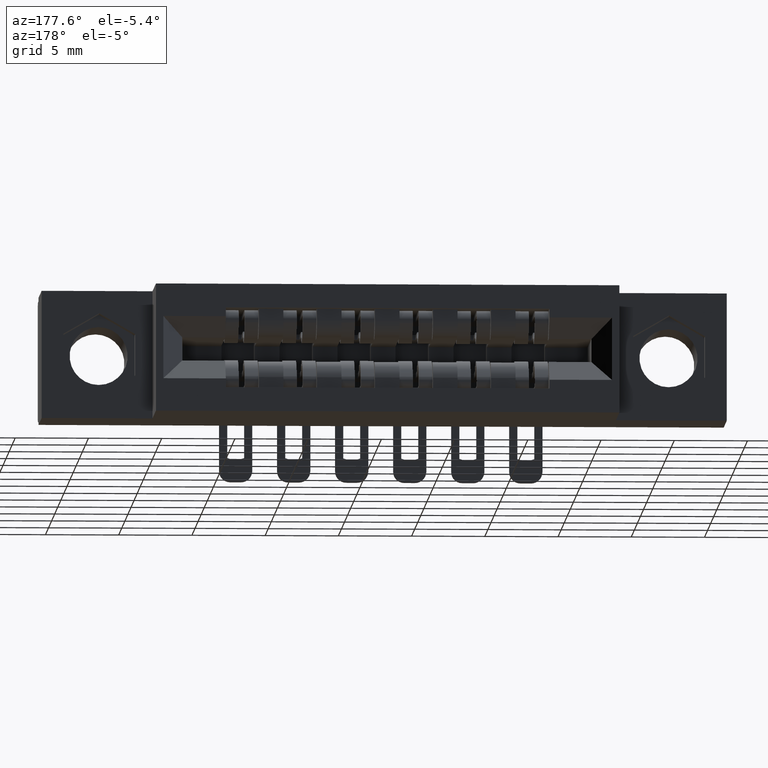
[diagram: clean part render]
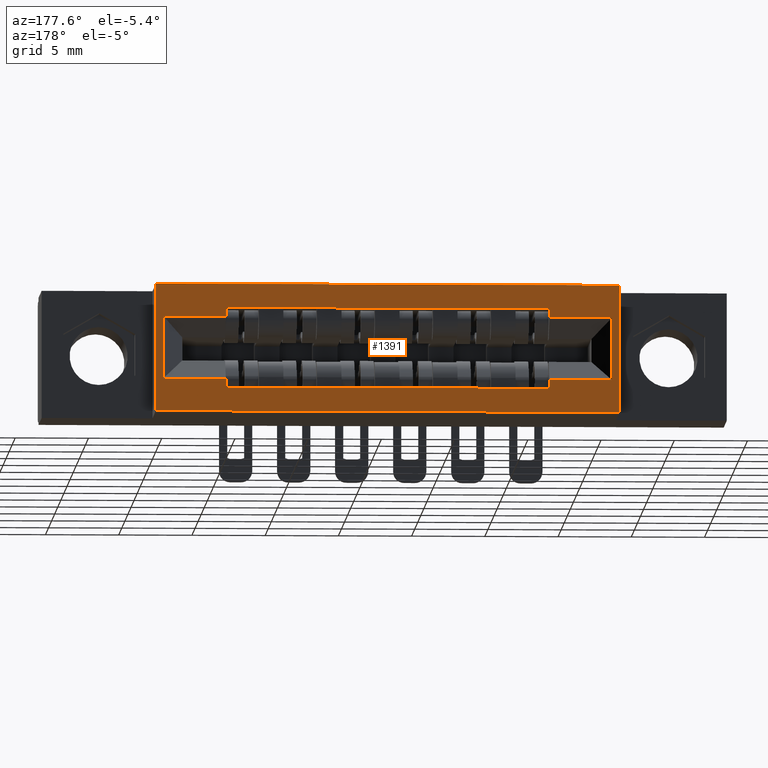
[diagram: same view with one face highlighted and labeled with its STEP entity id]
A machine part, auxiliary view. The second image highlights one B-rep face of the part: STEP entity #1391.
In plain terms, the highlighted planar face has unit normal (0, -1, 0).
Its self-contained STEP definition (entity closure, byte-faithful):
#80 = EDGE_CURVE ( 'NONE', #4346, #7423, #1000, .T. ) ;
#233 = DIRECTION ( 'NONE',  ( -1.000000000000000000, 0.0000000000000000000, 0.0000000000000000000 ) ) ;
#367 = DIRECTION ( 'NONE',  ( 1.000000000000000000, 0.0000000000000000000, 0.0000000000000000000 ) ) ;
#682 = LINE ( 'NONE', #2516, #6257 ) ;
#764 = CARTESIAN_POINT ( 'NONE',  ( 1.356000000000000500, 0.4729999999999999800, -0.2790000000000001400 ) ) ;
#790 = LINE ( 'NONE', #993, #4105 ) ;
#795 = EDGE_CURVE ( 'NONE', #2788, #7423, #4943, .T. ) ;
#970 = VECTOR ( 'NONE', #9597, 39.37007874015748100 ) ;
#980 = AXIS2_PLACEMENT_3D ( 'NONE', #2332, #9848, #9884 ) ;
#988 = DIRECTION ( 'NONE',  ( 1.000000000000000000, 0.0000000000000000000, 0.0000000000000000000 ) ) ;
#993 = CARTESIAN_POINT ( 'NONE',  ( 1.356000000000000500, 0.4729999999999999800, -0.06399999999999989000 ) ) ;
#1000 = LINE ( 'NONE', #10822, #6675 ) ;
#1036 = LINE ( 'NONE', #5207, #6996 ) ;
#1154 = EDGE_CURVE ( 'NONE', #8760, #9847, #10745, .T. ) ;
#1230 = CARTESIAN_POINT ( 'NONE',  ( 1.544000000000000700, 0.4729999999999999800, 0.0000000000000000000 ) ) ;
#1268 = VECTOR ( 'NONE', #8904, 39.37007874015748100 ) ;
#1391 = ADVANCED_FACE ( 'NONE', ( #8098, #2840 ), #4855, .F. ) ;
#1425 = LINE ( 'NONE', #4657, #10441 ) ;
#1478 = CARTESIAN_POINT ( 'NONE',  ( 1.524000000000000900, 0.4729999999999999800, -0.3430000000000000300 ) ) ;
#1562 = EDGE_CURVE ( 'NONE', #1937, #9847, #10608, .T. ) ;
#1583 = ORIENTED_EDGE ( 'NONE', *, *, #10552, .T. ) ;
#1643 = CARTESIAN_POINT ( 'NONE',  ( 1.356000000000000500, 0.4729999999999999800, -0.06399999999999989000 ) ) ;
#1675 = VERTEX_POINT ( 'NONE', #5525 ) ;
#1746 = CARTESIAN_POINT ( 'NONE',  ( 0.4860000000000004300, 0.4729999999999999800, -0.06400000000000012600 ) ) ;
#1777 = DIRECTION ( 'NONE',  ( -0.0000000000000000000, -0.0000000000000000000, 1.000000000000000000 ) ) ;
#1811 = CARTESIAN_POINT ( 'NONE',  ( 0.0000000000000000000, 0.4729999999999999800, -0.2555000000000003400 ) ) ;
#1874 = DIRECTION ( 'NONE',  ( 0.0000000000000000000, 0.0000000000000000000, -1.000000000000000000 ) ) ;
#1925 = ORIENTED_EDGE ( 'NONE', *, *, #7093, .F. ) ;
#1927 = CARTESIAN_POINT ( 'NONE',  ( 0.3179999999999995600, 0.4729999999999999800, -0.3430000000000000300 ) ) ;
#1937 = VERTEX_POINT ( 'NONE', #5009 ) ;
#1961 = DIRECTION ( 'NONE',  ( 1.000000000000000000, 0.0000000000000000000, 0.0000000000000000000 ) ) ;
#1971 = EDGE_CURVE ( 'NONE', #9939, #4849, #5347, .T. ) ;
#2024 = DIRECTION ( 'NONE',  ( 1.000000000000000000, -0.0000000000000000000, -1.897116662266849500E-016 ) ) ;
#2066 = DIRECTION ( 'NONE',  ( 0.0000000000000000000, 0.0000000000000000000, -1.000000000000000000 ) ) ;
#2086 = VERTEX_POINT ( 'NONE', #1746 ) ;
#2116 = CARTESIAN_POINT ( 'NONE',  ( 0.2979999999999998800, 0.4729999999999999800, 0.0000000000000000000 ) ) ;
#2210 = ORIENTED_EDGE ( 'NONE', *, *, #1154, .T. ) ;
#2332 = CARTESIAN_POINT ( 'NONE',  ( 0.0000000000000000000, 0.4729999999999999800, -0.3430000000000000300 ) ) ;
#2339 = ORIENTED_EDGE ( 'NONE', *, *, #10333, .T. ) ;
#2452 = ORIENTED_EDGE ( 'NONE', *, *, #795, .T. ) ;
#2496 = LINE ( 'NONE', #1811, #9638 ) ;
#2516 = CARTESIAN_POINT ( 'NONE',  ( 0.4860000000000004300, 0.4729999999999999800, -0.06400000000000012600 ) ) ;
#2561 = VECTOR ( 'NONE', #1777, 39.37007874015748100 ) ;
#2713 = VERTEX_POINT ( 'NONE', #10921 ) ;
#2788 = VERTEX_POINT ( 'NONE', #2823 ) ;
#2823 = CARTESIAN_POINT ( 'NONE',  ( 1.544000000000000700, 0.4729999999999999800, -0.3430000000000000300 ) ) ;
#2840 = FACE_OUTER_BOUND ( 'NONE', #4706, .T. ) ;
#2849 = LINE ( 'NONE', #10456, #6943 ) ;
#2993 = ORIENTED_EDGE ( 'NONE', *, *, #80, .F. ) ;
#3234 = CARTESIAN_POINT ( 'NONE',  ( 1.356000000000000500, 0.4729999999999999800, -0.2555000000000003400 ) ) ;
#3278 = LINE ( 'NONE', #1230, #8286 ) ;
#3291 = CARTESIAN_POINT ( 'NONE',  ( 1.356000000000000500, 0.4729999999999999800, -0.08749999999999988300 ) ) ;
#3309 = VERTEX_POINT ( 'NONE', #1643 ) ;
#3455 = CARTESIAN_POINT ( 'NONE',  ( 0.5760000000000004000, 0.4729999999999999800, -0.06400000000000014000 ) ) ;
#3730 = ORIENTED_EDGE ( 'NONE', *, *, #3879, .T. ) ;
#3811 = CARTESIAN_POINT ( 'NONE',  ( 0.0000000000000000000, 0.4729999999999999800, 0.0000000000000000000 ) ) ;
#3879 = EDGE_CURVE ( 'NONE', #1675, #10650, #1425, .T. ) ;
#3912 = EDGE_LOOP ( 'NONE', ( #5894, #2210, #7658, #8727, #9011, #2339, #9542, #10859, #4986, #6301, #1925, #3730 ) ) ;
#3933 = LINE ( 'NONE', #3455, #6839 ) ;
#3950 = DIRECTION ( 'NONE',  ( -1.000000000000000000, 0.0000000000000000000, 0.0000000000000000000 ) ) ;
#4105 = VECTOR ( 'NONE', #1874, 39.37007874015748100 ) ;
#4139 = DIRECTION ( 'NONE',  ( -1.000000000000000000, -0.0000000000000000000, -0.0000000000000000000 ) ) ;
#4346 = VERTEX_POINT ( 'NONE', #2116 ) ;
#4525 = DIRECTION ( 'NONE',  ( -1.000000000000000000, 0.0000000000000000000, 0.0000000000000000000 ) ) ;
#4574 = EDGE_CURVE ( 'NONE', #6552, #1937, #1036, .T. ) ;
#4657 = CARTESIAN_POINT ( 'NONE',  ( 0.0000000000000000000, 0.4729999999999999800, -0.08749999999999988300 ) ) ;
#4672 = LINE ( 'NONE', #1927, #970 ) ;
#4706 = EDGE_LOOP ( 'NONE', ( #1583, #2452, #2993, #10790 ) ) ;
#4783 = CARTESIAN_POINT ( 'NONE',  ( 1.524000000000000900, 0.4729999999999999800, -0.2555000000000003400 ) ) ;
#4809 = CARTESIAN_POINT ( 'NONE',  ( 0.3179999999999995600, 0.4729999999999999800, -0.08749999999999988300 ) ) ;
#4849 = VERTEX_POINT ( 'NONE', #9974 ) ;
#4855 = PLANE ( 'NONE',  #980 ) ;
#4943 = LINE ( 'NONE', #10776, #9596 ) ;
#4986 = ORIENTED_EDGE ( 'NONE', *, *, #5450, .F. ) ;
#5009 = CARTESIAN_POINT ( 'NONE',  ( 0.4860000000000004300, 0.4729999999999999800, -0.2790000000000001400 ) ) ;
#5122 = EDGE_CURVE ( 'NONE', #2086, #3309, #3933, .T. ) ;
#5207 = CARTESIAN_POINT ( 'NONE',  ( 0.5760000000000004000, 0.4729999999999999800, -0.2790000000000001400 ) ) ;
#5347 = LINE ( 'NONE', #1478, #6258 ) ;
#5450 = EDGE_CURVE ( 'NONE', #3309, #10821, #6973, .T. ) ;
#5525 = CARTESIAN_POINT ( 'NONE',  ( 0.4860000000000004300, 0.4729999999999999800, -0.08749999999999988300 ) ) ;
#5836 = DIRECTION ( 'NONE',  ( -3.982285705049946100E-016, 0.0000000000000000000, -1.000000000000000000 ) ) ;
#5894 = ORIENTED_EDGE ( 'NONE', *, *, #6847, .T. ) ;
#5963 = CARTESIAN_POINT ( 'NONE',  ( 0.4860000000000004300, 0.4729999999999999800, -0.06400000000000012600 ) ) ;
#6098 = EDGE_CURVE ( 'NONE', #4849, #10821, #2849, .T. ) ;
#6238 = CARTESIAN_POINT ( 'NONE',  ( 0.4860000000000004300, 0.4729999999999999800, -0.2555000000000003400 ) ) ;
#6257 = VECTOR ( 'NONE', #10130, 39.37007874015748100 ) ;
#6258 = VECTOR ( 'NONE', #9221, 39.37007874015748100 ) ;
#6301 = ORIENTED_EDGE ( 'NONE', *, *, #5122, .F. ) ;
#6552 = VERTEX_POINT ( 'NONE', #764 ) ;
#6675 = VECTOR ( 'NONE', #5836, 39.37007874015748100 ) ;
#6839 = VECTOR ( 'NONE', #2024, 39.37007874015748100 ) ;
#6847 = EDGE_CURVE ( 'NONE', #10650, #8760, #4672, .T. ) ;
#6943 = VECTOR ( 'NONE', #4525, 39.37007874015748100 ) ;
#6973 = LINE ( 'NONE', #8048, #1268 ) ;
#6996 = VECTOR ( 'NONE', #233, 39.37007874015748100 ) ;
#7036 = VECTOR ( 'NONE', #367, 39.37007874015748100 ) ;
#7093 = EDGE_CURVE ( 'NONE', #1675, #2086, #682, .T. ) ;
#7423 = VERTEX_POINT ( 'NONE', #10371 ) ;
#7658 = ORIENTED_EDGE ( 'NONE', *, *, #1562, .F. ) ;
#7900 = CARTESIAN_POINT ( 'NONE',  ( 0.0000000000000000000, 0.4729999999999999800, -0.2555000000000003400 ) ) ;
#7978 = VECTOR ( 'NONE', #988, 39.37007874015748100 ) ;
#8048 = CARTESIAN_POINT ( 'NONE',  ( 1.356000000000000500, 0.4729999999999999800, -0.06399999999999989000 ) ) ;
#8098 = FACE_BOUND ( 'NONE', #3912, .T. ) ;
#8286 = VECTOR ( 'NONE', #2066, 39.37007874015748100 ) ;
#8727 = ORIENTED_EDGE ( 'NONE', *, *, #4574, .F. ) ;
#8760 = VERTEX_POINT ( 'NONE', #10525 ) ;
#8840 = EDGE_CURVE ( 'NONE', #4346, #2713, #9801, .T. ) ;
#8904 = DIRECTION ( 'NONE',  ( 0.0000000000000000000, 0.0000000000000000000, -1.000000000000000000 ) ) ;
#9011 = ORIENTED_EDGE ( 'NONE', *, *, #9178, .F. ) ;
#9178 = EDGE_CURVE ( 'NONE', #9554, #6552, #790, .T. ) ;
#9221 = DIRECTION ( 'NONE',  ( 0.0000000000000000000, 0.0000000000000000000, 1.000000000000000000 ) ) ;
#9542 = ORIENTED_EDGE ( 'NONE', *, *, #1971, .T. ) ;
#9554 = VERTEX_POINT ( 'NONE', #3234 ) ;
#9596 = VECTOR ( 'NONE', #4139, 39.37007874015748100 ) ;
#9597 = DIRECTION ( 'NONE',  ( 0.0000000000000000000, 0.0000000000000000000, -1.000000000000000000 ) ) ;
#9638 = VECTOR ( 'NONE', #1961, 39.37007874015748100 ) ;
#9801 = LINE ( 'NONE', #3811, #7036 ) ;
#9847 = VERTEX_POINT ( 'NONE', #6238 ) ;
#9848 = DIRECTION ( 'NONE',  ( 0.0000000000000000000, -1.000000000000000000, 0.0000000000000000000 ) ) ;
#9884 = DIRECTION ( 'NONE',  ( 0.0000000000000000000, -0.0000000000000000000, -1.000000000000000000 ) ) ;
#9939 = VERTEX_POINT ( 'NONE', #4783 ) ;
#9974 = CARTESIAN_POINT ( 'NONE',  ( 1.524000000000000900, 0.4729999999999999800, -0.08749999999999988300 ) ) ;
#10130 = DIRECTION ( 'NONE',  ( -0.0000000000000000000, -0.0000000000000000000, 1.000000000000000000 ) ) ;
#10333 = EDGE_CURVE ( 'NONE', #9554, #9939, #2496, .T. ) ;
#10371 = CARTESIAN_POINT ( 'NONE',  ( 0.2979999999999998200, 0.4729999999999999800, -0.3430000000000000300 ) ) ;
#10441 = VECTOR ( 'NONE', #3950, 39.37007874015748100 ) ;
#10456 = CARTESIAN_POINT ( 'NONE',  ( 0.0000000000000000000, 0.4729999999999999800, -0.08749999999999988300 ) ) ;
#10525 = CARTESIAN_POINT ( 'NONE',  ( 0.3179999999999995600, 0.4729999999999999800, -0.2555000000000003400 ) ) ;
#10552 = EDGE_CURVE ( 'NONE', #2713, #2788, #3278, .T. ) ;
#10608 = LINE ( 'NONE', #5963, #2561 ) ;
#10650 = VERTEX_POINT ( 'NONE', #4809 ) ;
#10745 = LINE ( 'NONE', #7900, #7978 ) ;
#10776 = CARTESIAN_POINT ( 'NONE',  ( 0.0000000000000000000, 0.4729999999999999800, -0.3430000000000000300 ) ) ;
#10790 = ORIENTED_EDGE ( 'NONE', *, *, #8840, .T. ) ;
#10821 = VERTEX_POINT ( 'NONE', #3291 ) ;
#10822 = CARTESIAN_POINT ( 'NONE',  ( 0.2979999999999999900, 0.4729999999999999800, -1.186721140104883800E-016 ) ) ;
#10859 = ORIENTED_EDGE ( 'NONE', *, *, #6098, .T. ) ;
#10921 = CARTESIAN_POINT ( 'NONE',  ( 1.544000000000000700, 0.4729999999999999800, 0.0000000000000000000 ) ) ;